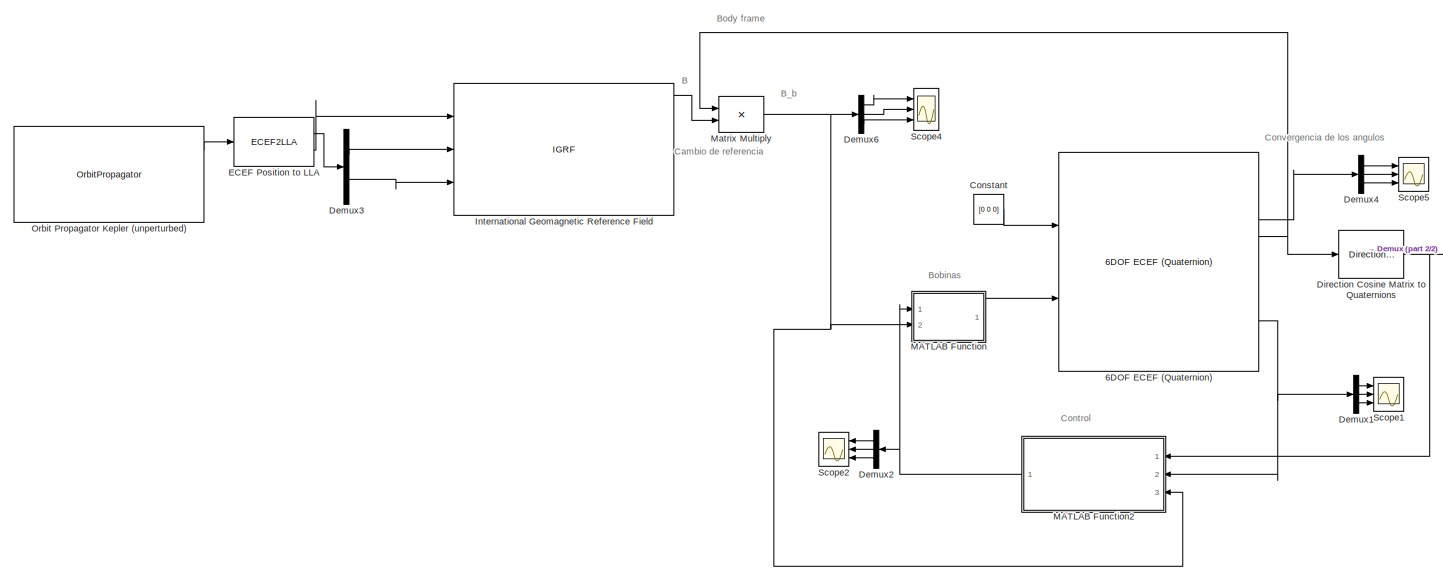
[diagram: root canvas - part 1/2, most of the canvas]
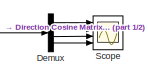
[diagram: root canvas - part 2/2, middle right region]
MODEL slx_4307f074c69f
KIND model
CONFIG AbsTol = auto
CONFIG EnableMultiTasking = off
CONFIG FixedStep = 0.1
CONFIG MaxStep = auto
CONFIG MinStep = auto
CONFIG RelTol = 1e-3
CONFIG SampleTimeConstraint = Unconstrained
CONFIG SolverName = VariableStepAuto
CONFIG StartTime = 0.0
CONFIG StopTime = 10000
BLOCK [Reference] 6DOF ECEF (Quaternion)  REF=aerolib6dof2/6DOF ECEF (Quaternion)
  Ports = [2, 12]
  SourceBlock = aerolib6dof2/6DOF ECEF (Quaternion)
  SourceProductBaseCode = AE
  SourceType = 6DOF EoM (ECEF)
BLOCK [Constant] Constant
  Value = [0 0 0]
BLOCK [Demux] Demux
  Ports = [1, 4]
BLOCK [Demux] Demux1
  Outputs = 3
  Ports = [1, 3]
BLOCK [Demux] Demux2
  Outputs = 3
  Ports = [1, 3]
BLOCK [Demux] Demux3
  Outputs = 2
  Ports = [1, 2]
BLOCK [Demux] Demux4
  Outputs = 3
  Ports = [1, 3]
BLOCK [Demux] Demux6
  Outputs = 3
  Ports = [1, 3]
BLOCK [Reference] Direction Cosine Matrix to Quaternions  REF=sharedtransform/Direction Cosine Matrix 
to Quaternions
  Ports = [1, 1]
  SourceBlock = sharedtransform/Direction Cosine Matrix \nto Quaternions
  SourceProductBaseCode = AE,PW,DR,MT,UV,VE
  SourceType = DCM2Quaternion
BLOCK [ECEF2LLA] ECEF Position to LLA
  Ports = [1, 2]
BLOCK [IGRF] International Geomagnetic Reference Field
  AttributesFormatString = %<generation>
  Ports = [3, 10]
  day = 23
  month = February
  time_in = off
  year = 2024
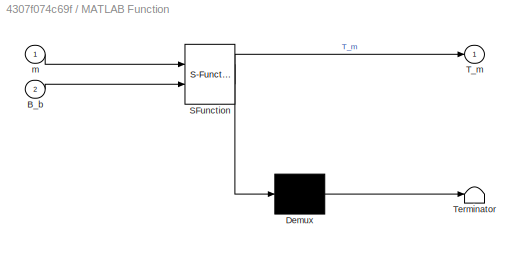
BLOCK [SubSystem] MATLAB Function
  ErrorFcn = Stateflow.Translate.translate
  PermitHierarchicalResolution = ExplicitOnly
  Ports = [2, 1]
  RequestExecContextInheritance = off
  SFBlockType = MATLAB Function
  TreatAsAtomicUnit = on
BLOCK [Demux] MATLAB Function/ Demux 
  Outputs = 1
  Ports = [1, 1]
BLOCK [S-Function] MATLAB Function/ SFunction 
  EnableBusSupport = on
  FunctionName = sf_sfun
  PortCounts = [2 2]
  Ports = [2, 2]
  SFcnIsStateOwnerBlock = off
  SFunctionDeploymentMode = off
  Tag = Stateflow S-Function 2
BLOCK [Terminator] MATLAB Function/ Terminator 
BLOCK [Inport] MATLAB Function/B_b
  Port = 2
BLOCK [Outport] MATLAB Function/T_m
BLOCK [Inport] MATLAB Function/m
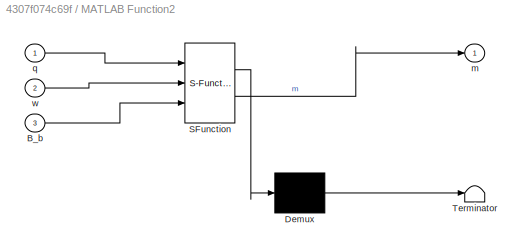
BLOCK [SubSystem] MATLAB Function2
  ErrorFcn = Stateflow.Translate.translate
  NameLocation = top
  PermitHierarchicalResolution = ExplicitOnly
  Ports = [3, 1]
  RequestExecContextInheritance = off
  SFBlockType = MATLAB Function
  SystemSampleTime = 1e-3
  TreatAsAtomicUnit = on
BLOCK [Demux] MATLAB Function2/ Demux 
  Outputs = 1
  Ports = [1, 1]
BLOCK [S-Function] MATLAB Function2/ SFunction 
  EnableBusSupport = on
  FunctionName = sf_sfun
  PortCounts = [3 2]
  Ports = [3, 2]
  SFcnIsStateOwnerBlock = off
  SFunctionDeploymentMode = off
  Tag = Stateflow S-Function 3
BLOCK [Terminator] MATLAB Function2/ Terminator 
BLOCK [Inport] MATLAB Function2/B_b
  Port = 3
BLOCK [Outport] MATLAB Function2/m
BLOCK [Inport] MATLAB Function2/q
BLOCK [Inport] MATLAB Function2/w
  Port = 2
BLOCK [Product] Matrix Multiply
  Multiplication = Matrix(*)
  Ports = [2, 1]
BLOCK [OrbitPropagator] Orbit Propagator Kepler (unperturbed)
  Ports = [0, 3]
  customJ2 = 1.0826269e-03
  customMu = 4.305e13
  eccentricity = 0.0005
  inclination = 98.06
  raan = 105
  startDate = [2024, 02, 23, 12, 32, 16]
  timeFormat = Gregorian
  trueAnomaly = 180
BLOCK [Scope] Scope
  Floating = off
  NumInputPorts = 4
  Ports = [4]
  ScopeSpecificationString = Simulink.scopes.TimeScopeBlockCfg('CurrentConfiguration', extmgr.ConfigurationSet(extmgr.Configuration('Core','General UI',true),extmgr.Configuration('Core','Source UI',true),extmgr.Configuration('Sources','WiredSimulink',true),extmgr.Configuration('Visuals','Time Domain',true,'SerializedDisplays',{struct('MinYLimReal','-0.52589','MaxYLimReal','1.39715','YLabelReal','','MinYLimMag','0.00000','MaxY...<+3354ch>
BLOCK [Scope] Scope1
  Floating = off
  NumInputPorts = 3
  Ports = [3]
  ScopeSpecificationString = Simulink.scopes.TimeScopeBlockCfg('CurrentConfiguration', extmgr.ConfigurationSet(extmgr.Configuration('Core','General UI',true),extmgr.Configuration('Core','Source UI',true),extmgr.Configuration('Sources','WiredSimulink',true,'DataLoggingVariableName','ScopeData1'),extmgr.Configuration('Visuals','Time Domain',true,'SerializedDisplays',{struct('MinYLimReal','0.00525','MaxYLimReal','0.01887','YLabe...<+2762ch>
BLOCK [Scope] Scope2
  Floating = off
  NumInputPorts = 3
  Ports = [3]
  ScopeSpecificationString = Simulink.scopes.TimeScopeBlockCfg('CurrentConfiguration', extmgr.ConfigurationSet(extmgr.Configuration('Core','General UI',true),extmgr.Configuration('Core','Source UI',true),extmgr.Configuration('Sources','WiredSimulink',true,'DataLoggingVariableName','ScopeData2'),extmgr.Configuration('Visuals','Time Domain',true,'SerializedDisplays',{struct('MinYLimReal','-0.04351','MaxYLimReal','0.06151','YLab...<+2741ch>
BLOCK [Scope] Scope4
  Floating = off
  NumInputPorts = 3
  Ports = [3]
  ScopeSpecificationString = Simulink.scopes.TimeScopeBlockCfg('CurrentConfiguration', extmgr.ConfigurationSet(extmgr.Configuration('Core','General UI',true),extmgr.Configuration('Core','Source UI',true),extmgr.Configuration('Sources','WiredSimulink',true,'DataLoggingVariableName','ScopeData2'),extmgr.Configuration('Visuals','Time Domain',true,'SerializedDisplays',{struct('MinYLimReal','-59354.51967','MaxYLimReal','41202.791'...<+2706ch>
BLOCK [Scope] Scope5
  Floating = off
  NumInputPorts = 3
  Ports = [3]
  ScopeSpecificationString = Simulink.scopes.TimeScopeBlockCfg('CurrentConfiguration', extmgr.ConfigurationSet(extmgr.Configuration('Core','General UI',true),extmgr.Configuration('Core','Source UI',true),extmgr.Configuration('Sources','WiredSimulink',true,'DataLoggingVariableName','ScopeData5'),extmgr.Configuration('Visuals','Time Domain',true,'SerializedDisplays',{struct('MinYLimReal','0.05665','MaxYLimReal','0.49011','YLabe...<+2739ch>
ANNOTATION (root): B
ANNOTATION (root): B_b
ANNOTATION (root): Bobinas
ANNOTATION (root): Body frame
ANNOTATION (root): Cambio de referencia
ANNOTATION (root): Control
ANNOTATION (root): Convergencia de los angulos
NET 6DOF ECEF (Quaternion):10 -> Demux1:1, MATLAB Function2:2
LINE 6DOF ECEF (Quaternion):4 -> Demux4:1
NET 6DOF ECEF (Quaternion):5 -> Direction Cosine Matrix to Quaternions:1, Matrix Multiply:1
LINE Constant:1 -> 6DOF ECEF (Quaternion):1
LINE Demux1:1 -> Scope1:1
LINE Demux1:2 -> Scope1:2
LINE Demux1:3 -> Scope1:3
LINE Demux2:1 -> Scope2:1
LINE Demux2:2 -> Scope2:2
LINE Demux2:3 -> Scope2:3
LINE Demux3:1 -> International Geomagnetic Reference Field:2
LINE Demux3:2 -> International Geomagnetic Reference Field:3
LINE Demux4:1 -> Scope5:1
LINE Demux4:2 -> Scope5:2
LINE Demux4:3 -> Scope5:3
LINE Demux6:1 -> Scope4:1
LINE Demux6:2 -> Scope4:2
LINE Demux6:3 -> Scope4:3
LINE Demux:1 -> Scope:1
LINE Demux:2 -> Scope:2
LINE Demux:3 -> Scope:3
LINE Demux:4 -> Scope:4
NET Direction Cosine Matrix to Quaternions:1 -> Demux:1, MATLAB Function2:1
LINE ECEF Position to LLA:1 -> Demux3:1
LINE ECEF Position to LLA:2 -> International Geomagnetic Reference Field:1
LINE International Geomagnetic Reference Field:1 -> Matrix Multiply:2
NET MATLAB Function2:1 -> Demux2:1, MATLAB Function:1
LINE MATLAB Function:1 -> 6DOF ECEF (Quaternion):2
NET Matrix Multiply:1 -> Demux6:1, MATLAB Function2:3, MATLAB Function:2
LINE Orbit Propagator Kepler (unperturbed):1 -> ECEF Position to LLA:1
note: NET lines group one-source signal fan-out (src -> all destinations, sorted); 1:1 wires keep LINE
CHART MATLAB Function states=1 transitions=1
  STATE_LABEL 'eML_blk_kernel()'
  STATE_LABEL "SCRIPT:\nfunction T_m = fcn(m, B_b)\n\n%saturacion; Tener en cuenta que pueden ser diferentes\ntop = [0.1, 0.1, 0.1]';\nm_res = [45e-4, 45e-4, 45e-4]';\n\nfor i=1:3\n    if abs(m(i)) > top(i)\n        m(i) = sign(m(i))*top(i);\n    end\nend\n\nT_m = cross(m + m_res*0, B_b*1e-9);\n\n"
CHART MATLAB Function2 states=1 transitions=1
  STATE_LABEL 'eML_blk_kernel()'
  STATE_LABEL 'SCRIPT:\nfunction m = fcn(q, w, B_b)\n\n\nq0 = q(1);\nq = q(2:4);\n\nepsilon = 0.001;\n\n\nK = 2e-3*eye(3)*20; %alpha*J/Jmax\nw_M = 0.01;\n\nu = -epsilon*K*w;\n\npersistent sgn_q0;\npersistent kq;\nkq = 0;\nif isempty(sgn_q0)\n    if  norm(w) < w_M\n        sgn_q0 = sign(q0);\n    end\nelse\n    kq = 0.001;\n    u = -epsilon*epsilon*kq*sgn_q0*q + u;\nend\n\nm = cross(B_b*1e-9,u)/(norm(B_b*1e-9).^2);\n\n\n\n\n\n\n\n\n'
CHART  states=0 transitions=0
CHART  states=0 transitions=0
